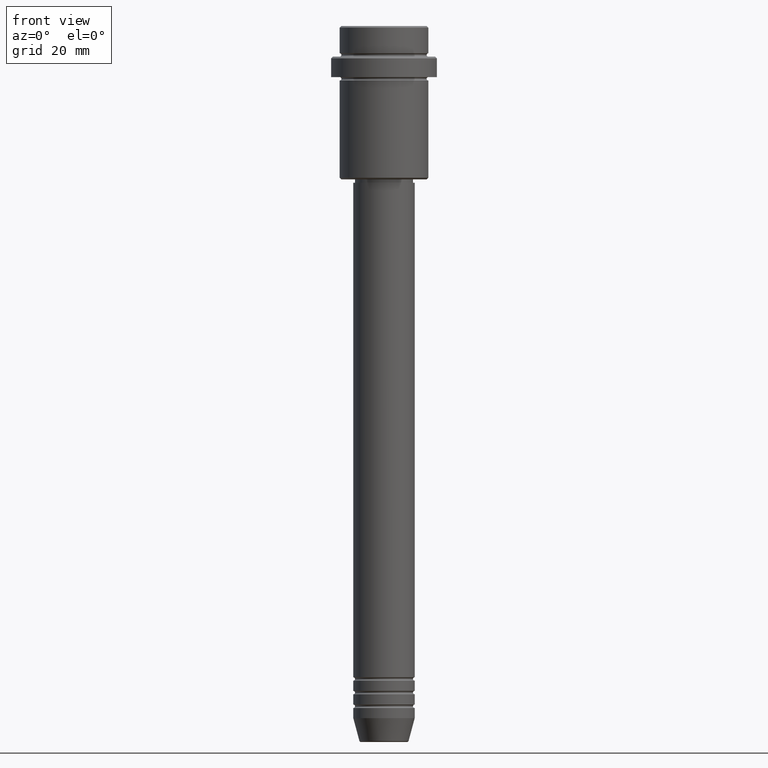
[diagram: clean part render]
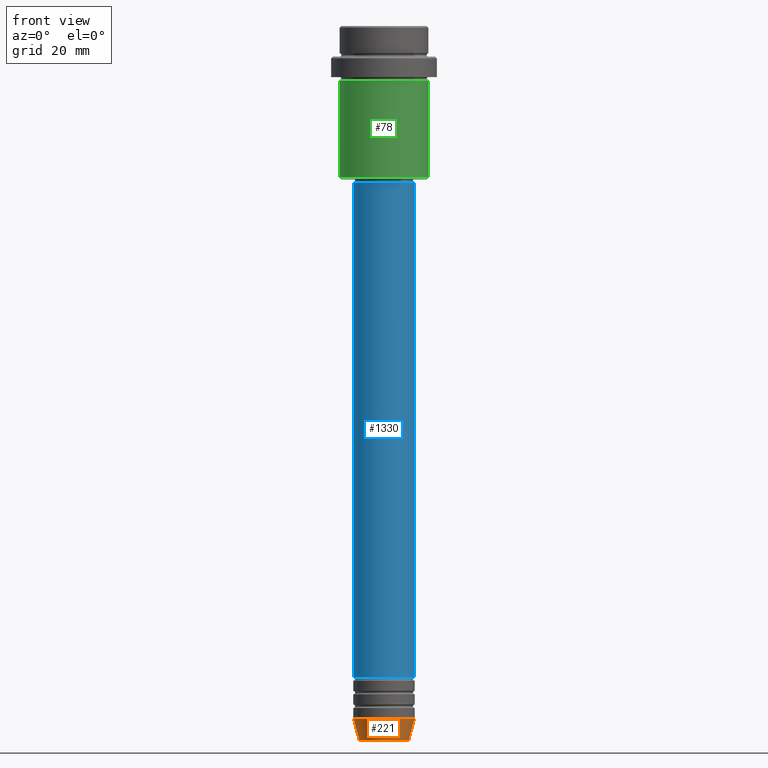
[diagram: same view with three faces highlighted in distinct colors, each labeled with its STEP entity id]
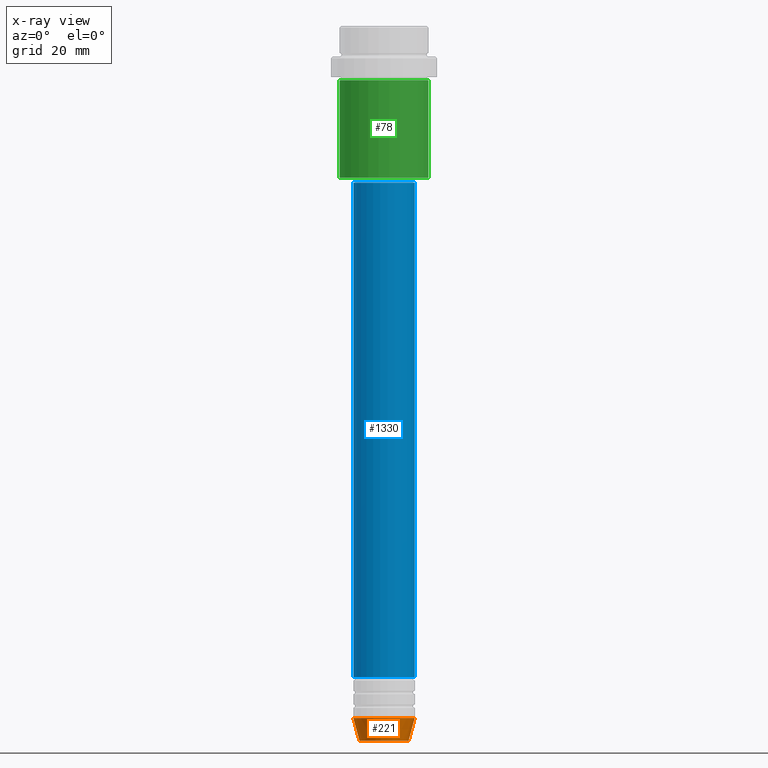
[diagram: x-ray of the same camera — body ghosted, the three highlighted faces saturated]
A machine part, front view with three faces highlighted in distinct colors.
The next image is the same camera in x-ray (body ghosted, the three faces saturated) — at least one of them is partly hidden behind the body in this view.
Their STEP definitions:

[orange] entity #221 — the highlighted conical surface has half-angle 15 deg.
#12 = CARTESIAN_POINT ( 'NONE',  ( 7.223655072137188604, 0.000000000000000000, -209.6294095225512990 ) ) ;
#56 = CARTESIAN_POINT ( 'NONE',  ( 0.000000000000000000, 0.000000000000000000, -203.0000000000000000 ) ) ;
#69 = DIRECTION ( 'NONE',  ( 0.2588190451025213501, 0.000000000000000000, 0.9659258262890680902 ) ) ;
#94 = VECTOR ( 'NONE', #1319, 1000.000000000000000 ) ;
#116 = CIRCLE ( 'NONE', #832, 9.000000000000000000 ) ;
#120 = AXIS2_PLACEMENT_3D ( 'NONE', #387, #399, #1365 ) ;
#144 = EDGE_CURVE ( 'NONE', #868, #429, #454, .T. ) ;
#192 = EDGE_CURVE ( 'NONE', #429, #732, #116, .T. ) ;
#221 = ADVANCED_FACE ( 'NONE', ( #411 ), #1309, .T. ) ;
#254 = AXIS2_PLACEMENT_3D ( 'NONE', #56, #848, #282 ) ;
#282 = DIRECTION ( 'NONE',  ( 1.000000000000000000, 0.000000000000000000, 0.000000000000000000 ) ) ;
#301 = LINE ( 'NONE', #646, #1293 ) ;
#308 = ORIENTED_EDGE ( 'NONE', *, *, #192, .F. ) ;
#387 = CARTESIAN_POINT ( 'NONE',  ( 0.000000000000000000, 0.000000000000000000, -209.6294095225512990 ) ) ;
#388 = CARTESIAN_POINT ( 'NONE',  ( 9.000000000000000000, 0.000000000000000000, -203.0000000000000000 ) ) ;
#399 = DIRECTION ( 'NONE',  ( -0.000000000000000000, -0.000000000000000000, 1.000000000000000000 ) ) ;
#411 = FACE_OUTER_BOUND ( 'NONE', #1099, .T. ) ;
#429 = VERTEX_POINT ( 'NONE', #879 ) ;
#454 = LINE ( 'NONE', #892, #94 ) ;
#455 = CIRCLE ( 'NONE', #120, 7.223655072137188604 ) ;
#646 = CARTESIAN_POINT ( 'NONE',  ( 9.000000000000000000, 0.000000000000000000, -203.0000000000000000 ) ) ;
#694 = ORIENTED_EDGE ( 'NONE', *, *, #1096, .T. ) ;
#732 = VERTEX_POINT ( 'NONE', #388 ) ;
#824 = ORIENTED_EDGE ( 'NONE', *, *, #1289, .T. ) ;
#832 = AXIS2_PLACEMENT_3D ( 'NONE', #957, #1046, #1074 ) ;
#848 = DIRECTION ( 'NONE',  ( -0.000000000000000000, -0.000000000000000000, 1.000000000000000000 ) ) ;
#868 = VERTEX_POINT ( 'NONE', #1092 ) ;
#879 = CARTESIAN_POINT ( 'NONE',  ( -9.000000000000000000, 1.102182119232617714E-15, -203.0000000000000000 ) ) ;
#892 = CARTESIAN_POINT ( 'NONE',  ( -9.000000000000000000, 1.102182119232617714E-15, -203.0000000000000000 ) ) ;
#957 = CARTESIAN_POINT ( 'NONE',  ( 0.000000000000000000, 0.000000000000000000, -203.0000000000000000 ) ) ;
#1046 = DIRECTION ( 'NONE',  ( -0.000000000000000000, -0.000000000000000000, 1.000000000000000000 ) ) ;
#1049 = VERTEX_POINT ( 'NONE', #12 ) ;
#1074 = DIRECTION ( 'NONE',  ( 1.000000000000000000, 0.000000000000000000, 0.000000000000000000 ) ) ;
#1092 = CARTESIAN_POINT ( 'NONE',  ( -7.223655072137189492, 9.934123627281765110E-16, -209.6294095225512990 ) ) ;
#1096 = EDGE_CURVE ( 'NONE', #868, #1049, #455, .T. ) ;
#1099 = EDGE_LOOP ( 'NONE', ( #1278, #694, #824, #308 ) ) ;
#1278 = ORIENTED_EDGE ( 'NONE', *, *, #144, .F. ) ;
#1289 = EDGE_CURVE ( 'NONE', #1049, #732, #301, .T. ) ;
#1293 = VECTOR ( 'NONE', #69, 1000.000000000000000 ) ;
#1309 = CONICAL_SURFACE ( 'NONE', #254, 9.000000000000000000, 0.2617993877991500740 ) ;
#1319 = DIRECTION ( 'NONE',  ( -0.2588190451025213501, 3.169619151431772337E-17, 0.9659258262890680902 ) ) ;
#1365 = DIRECTION ( 'NONE',  ( 1.000000000000000000, 0.000000000000000000, 0.000000000000000000 ) ) ;

[blue] entity #1330 — the highlighted cylindrical surface (edge-blend (fillet) strip) has radius 9 mm, axis along (-0, -0, 1).
#62 = CARTESIAN_POINT ( 'NONE',  ( 0.000000000000000000, 0.000000000000000000, -190.9999999999998863 ) ) ;
#67 = VERTEX_POINT ( 'NONE', #1012 ) ;
#85 = DIRECTION ( 'NONE',  ( -0.000000000000000000, -0.000000000000000000, 1.000000000000000000 ) ) ;
#212 = CIRCLE ( 'NONE', #401, 9.000000000000001776 ) ;
#216 = DIRECTION ( 'NONE',  ( -0.000000000000000000, -0.000000000000000000, 1.000000000000000000 ) ) ;
#220 = DIRECTION ( 'NONE',  ( -0.000000000000000000, -0.000000000000000000, 1.000000000000000000 ) ) ;
#292 = ORIENTED_EDGE ( 'NONE', *, *, #1245, .F. ) ;
#340 = EDGE_CURVE ( 'NONE', #1279, #67, #654, .T. ) ;
#353 = ORIENTED_EDGE ( 'NONE', *, *, #728, .F. ) ;
#394 = DIRECTION ( 'NONE',  ( 1.000000000000000000, 0.000000000000000000, 0.000000000000000000 ) ) ;
#401 = AXIS2_PLACEMENT_3D ( 'NONE', #495, #610, #934 ) ;
#416 = CARTESIAN_POINT ( 'NONE',  ( -9.000000000000001776, 1.102182119232617911E-15, 0.000000000000000000 ) ) ;
#441 = FACE_OUTER_BOUND ( 'NONE', #850, .T. ) ;
#495 = CARTESIAN_POINT ( 'NONE',  ( 0.000000000000000000, 0.000000000000000000, -46.00000000000001421 ) ) ;
#518 = CARTESIAN_POINT ( 'NONE',  ( 9.000000000000000000, 0.000000000000000000, -190.9999999999998863 ) ) ;
#536 = CARTESIAN_POINT ( 'NONE',  ( 9.000000000000001776, 0.000000000000000000, 0.000000000000000000 ) ) ;
#610 = DIRECTION ( 'NONE',  ( -0.000000000000000000, -0.000000000000000000, 1.000000000000000000 ) ) ;
#627 = DIRECTION ( 'NONE',  ( -0.000000000000000000, -0.000000000000000000, 1.000000000000000000 ) ) ;
#647 = EDGE_CURVE ( 'NONE', #1050, #1279, #1158, .T. ) ;
#654 = LINE ( 'NONE', #536, #1241 ) ;
#680 = CARTESIAN_POINT ( 'NONE',  ( -9.000000000000001776, 1.102182119232617911E-15, -46.00000000000001421 ) ) ;
#728 = EDGE_CURVE ( 'NONE', #1391, #67, #212, .T. ) ;
#762 = LINE ( 'NONE', #416, #956 ) ;
#850 = EDGE_LOOP ( 'NONE', ( #292, #1006, #1199, #353 ) ) ;
#866 = AXIS2_PLACEMENT_3D ( 'NONE', #1387, #85, #1173 ) ;
#901 = CARTESIAN_POINT ( 'NONE',  ( -9.000000000000000000, 1.102182119232617714E-15, -190.9999999999998863 ) ) ;
#934 = DIRECTION ( 'NONE',  ( 1.000000000000000000, 0.000000000000000000, 0.000000000000000000 ) ) ;
#956 = VECTOR ( 'NONE', #216, 1000.000000000000000 ) ;
#1006 = ORIENTED_EDGE ( 'NONE', *, *, #647, .T. ) ;
#1012 = CARTESIAN_POINT ( 'NONE',  ( 9.000000000000001776, 0.000000000000000000, -46.00000000000001421 ) ) ;
#1018 = AXIS2_PLACEMENT_3D ( 'NONE', #62, #627, #394 ) ;
#1050 = VERTEX_POINT ( 'NONE', #901 ) ;
#1158 = CIRCLE ( 'NONE', #1018, 9.000000000000000000 ) ;
#1173 = DIRECTION ( 'NONE',  ( 1.000000000000000000, 0.000000000000000000, 0.000000000000000000 ) ) ;
#1199 = ORIENTED_EDGE ( 'NONE', *, *, #340, .T. ) ;
#1241 = VECTOR ( 'NONE', #220, 1000.000000000000000 ) ;
#1245 = EDGE_CURVE ( 'NONE', #1050, #1391, #762, .T. ) ;
#1279 = VERTEX_POINT ( 'NONE', #518 ) ;
#1292 = CYLINDRICAL_SURFACE ( 'NONE', #866, 9.000000000000001776 ) ;
#1330 = ADVANCED_FACE ( 'NONE', ( #441 ), #1292, .T. ) ;
#1387 = CARTESIAN_POINT ( 'NONE',  ( 0.000000000000000000, 0.000000000000000000, 0.000000000000000000 ) ) ;
#1391 = VERTEX_POINT ( 'NONE', #680 ) ;

[green] entity #78 — the highlighted cylindrical surface (partial cylindrical patch) has radius 13 mm, axis along (-0, -0, 1).
#8 = DIRECTION ( 'NONE',  ( 1.000000000000000000, 0.000000000000000000, 0.000000000000000000 ) ) ;
#10 = CARTESIAN_POINT ( 'NONE',  ( 0.000000000000000000, 0.000000000000000000, 0.000000000000000000 ) ) ;
#14 = EDGE_CURVE ( 'NONE', #524, #153, #740, .T. ) ;
#34 = CARTESIAN_POINT ( 'NONE',  ( -13.00000000000000000, 1.592040838891559095E-15, -44.50000000000001421 ) ) ;
#71 = AXIS2_PLACEMENT_3D ( 'NONE', #853, #214, #300 ) ;
#78 = ADVANCED_FACE ( 'NONE', ( #349 ), #666, .T. ) ;
#93 = DIRECTION ( 'NONE',  ( -0.000000000000000000, -0.000000000000000000, 1.000000000000000000 ) ) ;
#117 = CARTESIAN_POINT ( 'NONE',  ( 13.00000000000000000, 0.000000000000000000, -44.50000000000001421 ) ) ;
#153 = VERTEX_POINT ( 'NONE', #117 ) ;
#206 = CARTESIAN_POINT ( 'NONE',  ( 13.00000000000000000, 0.000000000000000000, 0.000000000000000000 ) ) ;
#214 = DIRECTION ( 'NONE',  ( -0.000000000000000000, -0.000000000000000000, 1.000000000000000000 ) ) ;
#300 = DIRECTION ( 'NONE',  ( -1.000000000000000000, 0.000000000000000000, 0.000000000000000000 ) ) ;
#319 = LINE ( 'NONE', #206, #331 ) ;
#325 = EDGE_CURVE ( 'NONE', #741, #1316, #450, .T. ) ;
#331 = VECTOR ( 'NONE', #980, 1000.000000000000000 ) ;
#349 = FACE_OUTER_BOUND ( 'NONE', #1055, .T. ) ;
#377 = ORIENTED_EDGE ( 'NONE', *, *, #783, .T. ) ;
#450 = CIRCLE ( 'NONE', #991, 13.00000000000000000 ) ;
#459 = EDGE_CURVE ( 'NONE', #524, #741, #649, .T. ) ;
#467 = DIRECTION ( 'NONE',  ( -0.000000000000000000, -0.000000000000000000, 1.000000000000000000 ) ) ;
#524 = VERTEX_POINT ( 'NONE', #34 ) ;
#526 = ORIENTED_EDGE ( 'NONE', *, *, #325, .F. ) ;
#605 = VECTOR ( 'NONE', #93, 1000.000000000000000 ) ;
#649 = LINE ( 'NONE', #1085, #605 ) ;
#666 = CYLINDRICAL_SURFACE ( 'NONE', #974, 13.00000000000000000 ) ;
#712 = ORIENTED_EDGE ( 'NONE', *, *, #459, .F. ) ;
#740 = CIRCLE ( 'NONE', #71, 13.00000000000000000 ) ;
#741 = VERTEX_POINT ( 'NONE', #1153 ) ;
#783 = EDGE_CURVE ( 'NONE', #153, #1316, #319, .T. ) ;
#853 = CARTESIAN_POINT ( 'NONE',  ( 0.000000000000000000, 0.000000000000000000, -44.50000000000001421 ) ) ;
#858 = ORIENTED_EDGE ( 'NONE', *, *, #14, .T. ) ;
#867 = DIRECTION ( 'NONE',  ( -0.000000000000000000, -0.000000000000000000, 1.000000000000000000 ) ) ;
#974 = AXIS2_PLACEMENT_3D ( 'NONE', #10, #467, #1308 ) ;
#980 = DIRECTION ( 'NONE',  ( -0.000000000000000000, -0.000000000000000000, 1.000000000000000000 ) ) ;
#991 = AXIS2_PLACEMENT_3D ( 'NONE', #1315, #867, #8 ) ;
#1055 = EDGE_LOOP ( 'NONE', ( #712, #858, #377, #526 ) ) ;
#1085 = CARTESIAN_POINT ( 'NONE',  ( -13.00000000000000000, 1.592040838891559095E-15, 0.000000000000000000 ) ) ;
#1153 = CARTESIAN_POINT ( 'NONE',  ( -13.00000000000000000, 1.592040838891559095E-15, -16.00000000000000000 ) ) ;
#1275 = CARTESIAN_POINT ( 'NONE',  ( 13.00000000000000000, 0.000000000000000000, -16.00000000000000000 ) ) ;
#1308 = DIRECTION ( 'NONE',  ( 1.000000000000000000, 0.000000000000000000, 0.000000000000000000 ) ) ;
#1315 = CARTESIAN_POINT ( 'NONE',  ( 0.000000000000000000, 0.000000000000000000, -16.00000000000000000 ) ) ;
#1316 = VERTEX_POINT ( 'NONE', #1275 ) ;